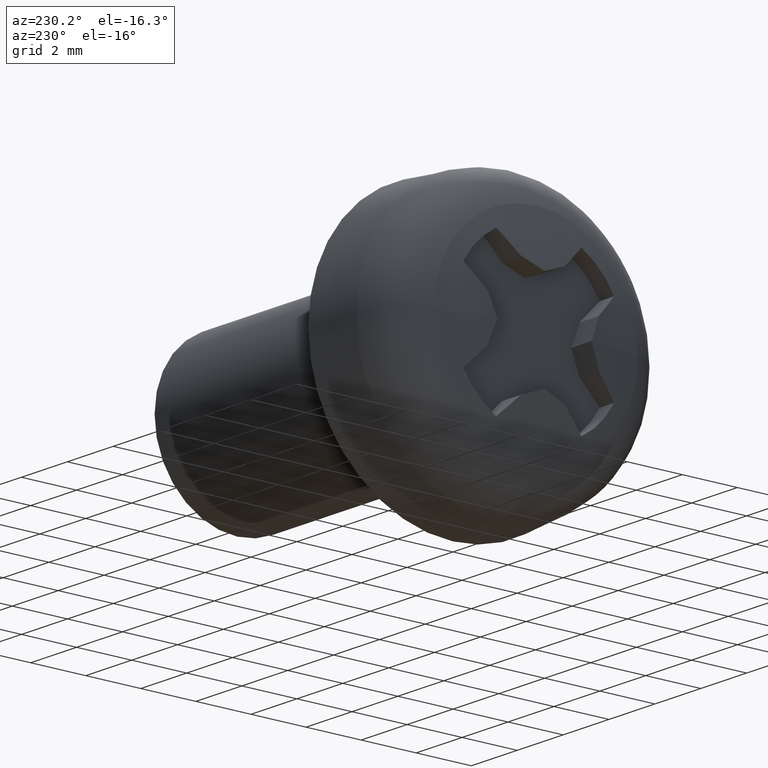
[diagram: clean part render]
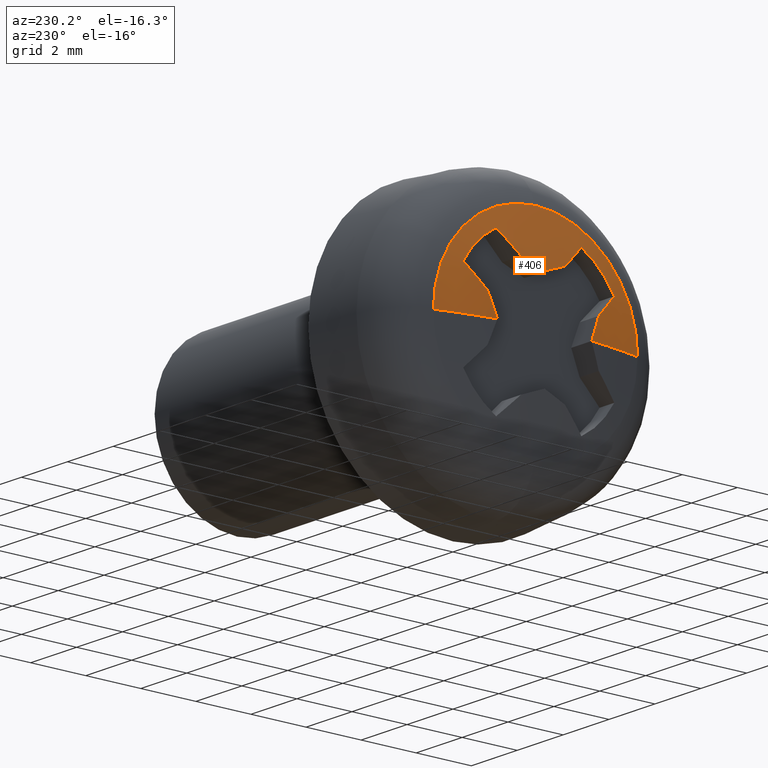
[diagram: same view with one face highlighted and labeled with its STEP entity id]
A machine part, auxiliary view. The second image highlights one B-rep face of the part: STEP entity #406.
In plain terms, the highlighted spherical surface has radius 14 mm.
Its self-contained STEP definition (entity closure, byte-faithful):
#4 = CIRCLE ( 'NONE', #1037, 3.708947338086202400 ) ;
#7 = VERTEX_POINT ( 'NONE', #224 ) ;
#25 = AXIS2_PLACEMENT_3D ( 'NONE', #289, #423, #1106 ) ;
#37 = ORIENTED_EDGE ( 'NONE', *, *, #127, .T. ) ;
#54 = CARTESIAN_POINT ( 'NONE',  ( -3.930463942929625500, -2.019542314457568400, 0.7998224569374201600 ) ) ;
#60 = AXIS2_PLACEMENT_3D ( 'NONE', #1148, #467, #1044 ) ;
#80 = VERTEX_POINT ( 'NONE', #720 ) ;
#84 = AXIS2_PLACEMENT_3D ( 'NONE', #1012, #808, #989 ) ;
#118 = CARTESIAN_POINT ( 'NONE',  ( -3.599767021786166100, -3.708947338086201500, 4.542150485793362700E-016 ) ) ;
#127 = EDGE_CURVE ( 'NONE', #973, #963, #711, .T. ) ;
#137 = DIRECTION ( 'NONE',  ( -0.0000000000000000000, -0.3583679495452333200, 0.9335804264972276100 ) ) ;
#141 = CARTESIAN_POINT ( 'NONE',  ( -3.741022688690677400, 1.548877267397112300, 2.742896136633752800 ) ) ;
#158 = CIRCLE ( 'NONE', #1067, 13.97122582108328500 ) ;
#164 = DIRECTION ( 'NONE',  ( -0.0000000000000000000, -0.6946583704589928100, 0.7193398003386556300 ) ) ;
#183 = ORIENTED_EDGE ( 'NONE', *, *, #978, .T. ) ;
#198 = CARTESIAN_POINT ( 'NONE',  ( -3.994865161484332900, 1.712519238825711800, -5.979228964769820000E-015 ) ) ;
#209 = ORIENTED_EDGE ( 'NONE', *, *, #555, .T. ) ;
#214 = AXIS2_PLACEMENT_3D ( 'NONE', #416, #1102, #524 ) ;
#216 = EDGE_CURVE ( 'NONE', #80, #973, #471, .T. ) ;
#224 = CARTESIAN_POINT ( 'NONE',  ( -3.930463942929620200, -0.7998224569372408600, 2.019542314457675400 ) ) ;
#239 = CIRCLE ( 'NONE', #298, 13.99999999999999800 ) ;
#289 = CARTESIAN_POINT ( 'NONE',  ( 9.900000000029551800, 0.0000000000000000000, 0.0000000000000000000 ) ) ;
#298 = AXIS2_PLACEMENT_3D ( 'NONE', #810, #1286, #518 ) ;
#304 = DIRECTION ( 'NONE',  ( 0.0000000000000000000, -0.0000000000000000000, 1.000000000000000000 ) ) ;
#305 = EDGE_CURVE ( 'NONE', #382, #1027, #580, .T. ) ;
#334 = CIRCLE ( 'NONE', #858, 13.90841185346590000 ) ;
#345 = DIRECTION ( 'NONE',  ( 0.0000000000000000000, 0.9335804264971057100, -0.3583679495455504600 ) ) ;
#348 = CIRCLE ( 'NONE', #1168, 13.90841185346586100 ) ;
#358 = CARTESIAN_POINT ( 'NONE',  ( -3.599767021786167000, 5.393788712642540300E-016, 3.708947338086202800 ) ) ;
#374 = EDGE_CURVE ( 'NONE', #1105, #421, #239, .T. ) ;
#382 = VERTEX_POINT ( 'NONE', #1279 ) ;
#392 = CARTESIAN_POINT ( 'NONE',  ( -3.741022688690677400, 0.0000000000000000000, 0.0000000000000000000 ) ) ;
#406 = ADVANCED_FACE ( 'NONE', ( #881 ), #794, .T. ) ;
#416 = CARTESIAN_POINT ( 'NONE',  ( -3.741022688690677400, 0.0000000000000000000, 0.0000000000000000000 ) ) ;
#421 = VERTEX_POINT ( 'NONE', #118 ) ;
#423 = DIRECTION ( 'NONE',  ( 0.0000000000000000000, 0.0000000000000000000, -1.000000000000000000 ) ) ;
#448 = DIRECTION ( 'NONE',  ( 0.0000000000000000000, 1.000000000000000000, 0.0000000000000000000 ) ) ;
#449 = DIRECTION ( 'NONE',  ( 0.0000000000000000000, -0.6946583704589643900, -0.7193398003386829400 ) ) ;
#462 = EDGE_CURVE ( 'NONE', #567, #7, #334, .T. ) ;
#467 = DIRECTION ( 'NONE',  ( -0.0000000000000000000, -0.7193398003386629600, -0.6946583704589851500 ) ) ;
#471 = CIRCLE ( 'NONE', #214, 3.150000000923794700 ) ;
#477 = CARTESIAN_POINT ( 'NONE',  ( -3.930463942929625500, 0.7998224569373984000, 2.019542314457575500 ) ) ;
#512 = CARTESIAN_POINT ( 'NONE',  ( -3.599767021786167000, 0.0000000000000000000, 0.0000000000000000000 ) ) ;
#518 = DIRECTION ( 'NONE',  ( 0.0000000000000000000, -1.000000000000000000, 1.224646799147353200E-016 ) ) ;
#524 = DIRECTION ( 'NONE',  ( 0.0000000000000000000, 0.0000000000000000000, -1.000000000000000000 ) ) ;
#530 = EDGE_CURVE ( 'NONE', #819, #1141, #1155, .T. ) ;
#553 = ORIENTED_EDGE ( 'NONE', *, *, #752, .T. ) ;
#555 = EDGE_CURVE ( 'NONE', #819, #954, #1056, .T. ) ;
#567 = VERTEX_POINT ( 'NONE', #886 ) ;
#571 = ORIENTED_EDGE ( 'NONE', *, *, #216, .T. ) ;
#580 = CIRCLE ( 'NONE', #593, 3.150000000923794700 ) ;
#583 = CARTESIAN_POINT ( 'NONE',  ( -3.599767021786167000, 0.0000000000000000000, 0.0000000000000000000 ) ) ;
#585 = ORIENTED_EDGE ( 'NONE', *, *, #1218, .T. ) ;
#593 = AXIS2_PLACEMENT_3D ( 'NONE', #392, #1087, #684 ) ;
#622 = DIRECTION ( 'NONE',  ( 0.0000000000000000000, 0.0000000000000000000, -1.000000000000000000 ) ) ;
#647 = DIRECTION ( 'NONE',  ( 0.0000000000000000000, 0.6946583704589720500, 0.7193398003386756200 ) ) ;
#655 = DIRECTION ( 'NONE',  ( 0.0000000000000000000, 0.7193398003386756200, -0.6946583704589720500 ) ) ;
#656 = AXIS2_PLACEMENT_3D ( 'NONE', #773, #960, #1264 ) ;
#659 = CIRCLE ( 'NONE', #656, 13.90841185346586100 ) ;
#668 = CARTESIAN_POINT ( 'NONE',  ( -3.741022688690677400, -2.742896136633735900, 1.548877267397140300 ) ) ;
#676 = DIRECTION ( 'NONE',  ( -0.0000000000000000000, 0.7193398003386829400, -0.6946583704589643900 ) ) ;
#684 = DIRECTION ( 'NONE',  ( 0.0000000000000000000, 0.0000000000000000000, -1.000000000000000000 ) ) ;
#697 = DIRECTION ( 'NONE',  ( 0.0000000000000000000, 0.3583679495455504600, 0.9335804264971057100 ) ) ;
#711 = CIRCLE ( 'NONE', #1259, 13.97122582108330500 ) ;
#720 = CARTESIAN_POINT ( 'NONE',  ( -3.741022688690677400, 2.742896136633813600, 1.548877267397003500 ) ) ;
#735 = CARTESIAN_POINT ( 'NONE',  ( -3.599767021786166100, 3.708947338086201500, 0.0000000000000000000 ) ) ;
#752 = EDGE_CURVE ( 'NONE', #922, #1105, #659, .T. ) ;
#754 = ORIENTED_EDGE ( 'NONE', *, *, #530, .F. ) ;
#759 = AXIS2_PLACEMENT_3D ( 'NONE', #1072, #304, #448 ) ;
#769 = VERTEX_POINT ( 'NONE', #358 ) ;
#771 = DIRECTION ( 'NONE',  ( 0.0000000000000000000, 0.9335804264972275000, 0.3583679495452333200 ) ) ;
#773 = CARTESIAN_POINT ( 'NONE',  ( 9.900000000029551800, -1.492584524844851500, -0.5729495183382227200 ) ) ;
#780 = ORIENTED_EDGE ( 'NONE', *, *, #374, .T. ) ;
#783 = ORIENTED_EDGE ( 'NONE', *, *, #305, .T. ) ;
#794 = SPHERICAL_SURFACE ( 'NONE', #759, 13.99999999999999800 ) ;
#806 = CARTESIAN_POINT ( 'NONE',  ( 9.900000000029551800, -0.6232015040534496500, 0.6453440490472318600 ) ) ;
#808 = DIRECTION ( 'NONE',  ( -0.0000000000000000000, 0.9335804264971094800, -0.3583679495455406300 ) ) ;
#810 = CARTESIAN_POINT ( 'NONE',  ( 9.900000000029551800, 0.0000000000000000000, 0.0000000000000000000 ) ) ;
#819 = VERTEX_POINT ( 'NONE', #198 ) ;
#858 = AXIS2_PLACEMENT_3D ( 'NONE', #1172, #697, #345 ) ;
#863 = CARTESIAN_POINT ( 'NONE',  ( 9.900000000029551800, -0.5729495183382380400, 1.492584524844844800 ) ) ;
#881 = FACE_OUTER_BOUND ( 'NONE', #1169, .T. ) ;
#886 = CARTESIAN_POINT ( 'NONE',  ( -3.994865161484313800, 1.793768689430779500E-014, 1.712519238825552800 ) ) ;
#899 = EDGE_CURVE ( 'NONE', #1141, #769, #4, .T. ) ;
#922 = VERTEX_POINT ( 'NONE', #54 ) ;
#923 = ORIENTED_EDGE ( 'NONE', *, *, #1184, .T. ) ;
#938 = ORIENTED_EDGE ( 'NONE', *, *, #947, .T. ) ;
#947 = EDGE_CURVE ( 'NONE', #963, #567, #348, .T. ) ;
#954 = VERTEX_POINT ( 'NONE', #1248 ) ;
#960 = DIRECTION ( 'NONE',  ( -0.0000000000000000000, -0.9335804264972313900, -0.3583679495452235500 ) ) ;
#963 = VERTEX_POINT ( 'NONE', #477 ) ;
#973 = VERTEX_POINT ( 'NONE', #141 ) ;
#978 = EDGE_CURVE ( 'NONE', #1027, #922, #1103, .T. ) ;
#989 = DIRECTION ( 'NONE',  ( 0.0000000000000000000, -0.3583679495455406900, -0.9335804264971094800 ) ) ;
#994 = CARTESIAN_POINT ( 'NONE',  ( 9.900000000029551800, 0.6232015040535963100, 0.6453440490474208200 ) ) ;
#1007 = AXIS2_PLACEMENT_3D ( 'NONE', #994, #647, #655 ) ;
#1012 = CARTESIAN_POINT ( 'NONE',  ( 9.900000000029551800, 1.492584524844329200, -0.5729495183386039700 ) ) ;
#1013 = CARTESIAN_POINT ( 'NONE',  ( -3.994865161484317400, -1.712519238825686000, -5.095750210681870800E-014 ) ) ;
#1027 = VERTEX_POINT ( 'NONE', #668 ) ;
#1037 = AXIS2_PLACEMENT_3D ( 'NONE', #583, #1162, #1057 ) ;
#1044 = DIRECTION ( 'NONE',  ( 0.0000000000000000000, -0.6946583704589850400, 0.7193398003386628500 ) ) ;
#1056 = CIRCLE ( 'NONE', #84, 13.90841185346589800 ) ;
#1057 = DIRECTION ( 'NONE',  ( 0.0000000000000000000, 0.0000000000000000000, -1.000000000000000000 ) ) ;
#1067 = AXIS2_PLACEMENT_3D ( 'NONE', #1128, #676, #449 ) ;
#1072 = CARTESIAN_POINT ( 'NONE',  ( 9.900000000029551800, 0.0000000000000000000, 0.0000000000000000000 ) ) ;
#1075 = ORIENTED_EDGE ( 'NONE', *, *, #1262, .F. ) ;
#1087 = DIRECTION ( 'NONE',  ( 1.000000000000000000, 0.0000000000000000000, 0.0000000000000000000 ) ) ;
#1102 = DIRECTION ( 'NONE',  ( 1.000000000000000000, 0.0000000000000000000, 0.0000000000000000000 ) ) ;
#1103 = CIRCLE ( 'NONE', #60, 13.97122582108330500 ) ;
#1105 = VERTEX_POINT ( 'NONE', #1013 ) ;
#1106 = DIRECTION ( 'NONE',  ( -1.000000000000000000, 0.0000000000000000000, 0.0000000000000000000 ) ) ;
#1121 = CIRCLE ( 'NONE', #1261, 3.708947338086202400 ) ;
#1128 = CARTESIAN_POINT ( 'NONE',  ( 9.900000000029551800, 0.6453440490474275900, -0.6232015040535896500 ) ) ;
#1141 = VERTEX_POINT ( 'NONE', #735 ) ;
#1148 = CARTESIAN_POINT ( 'NONE',  ( 9.900000000029551800, -0.6453440490472384100, -0.6232015040534428800 ) ) ;
#1151 = CIRCLE ( 'NONE', #1007, 13.97122582108328700 ) ;
#1155 = CIRCLE ( 'NONE', #25, 13.99999999999999800 ) ;
#1162 = DIRECTION ( 'NONE',  ( 1.000000000000000000, -0.0000000000000000000, -0.0000000000000000000 ) ) ;
#1168 = AXIS2_PLACEMENT_3D ( 'NONE', #863, #137, #771 ) ;
#1169 = EDGE_LOOP ( 'NONE', ( #553, #780, #1075, #1290, #754, #209, #585, #571, #37, #938, #1257, #923, #783, #183 ) ) ;
#1172 = CARTESIAN_POINT ( 'NONE',  ( 9.900000000029551800, 0.5729495183386196200, 1.492584524844323200 ) ) ;
#1184 = EDGE_CURVE ( 'NONE', #7, #382, #1151, .T. ) ;
#1194 = DIRECTION ( 'NONE',  ( 1.000000000000000000, -0.0000000000000000000, -0.0000000000000000000 ) ) ;
#1218 = EDGE_CURVE ( 'NONE', #954, #80, #158, .T. ) ;
#1248 = CARTESIAN_POINT ( 'NONE',  ( -3.930463942929620200, 2.019542314457666500, 0.7998224569372619500 ) ) ;
#1257 = ORIENTED_EDGE ( 'NONE', *, *, #462, .T. ) ;
#1259 = AXIS2_PLACEMENT_3D ( 'NONE', #806, #164, #1277 ) ;
#1261 = AXIS2_PLACEMENT_3D ( 'NONE', #512, #1194, #622 ) ;
#1262 = EDGE_CURVE ( 'NONE', #769, #421, #1121, .T. ) ;
#1264 = DIRECTION ( 'NONE',  ( 0.0000000000000000000, -0.3583679495452235000, 0.9335804264972312700 ) ) ;
#1277 = DIRECTION ( 'NONE',  ( 0.0000000000000000000, 0.7193398003386554100, 0.6946583704589927000 ) ) ;
#1279 = CARTESIAN_POINT ( 'NONE',  ( -3.741022688690677400, -1.548877267396974800, 2.742896136633829600 ) ) ;
#1286 = DIRECTION ( 'NONE',  ( 0.0000000000000000000, 1.224646799147353200E-016, 1.000000000000000000 ) ) ;
#1290 = ORIENTED_EDGE ( 'NONE', *, *, #899, .F. ) ;